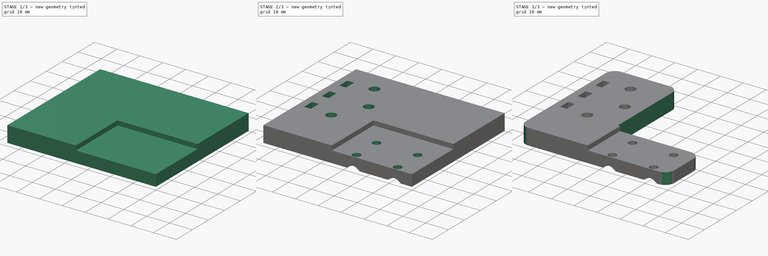
[diagram: build sequence overview — one tinted view per stage of 3, left to right]
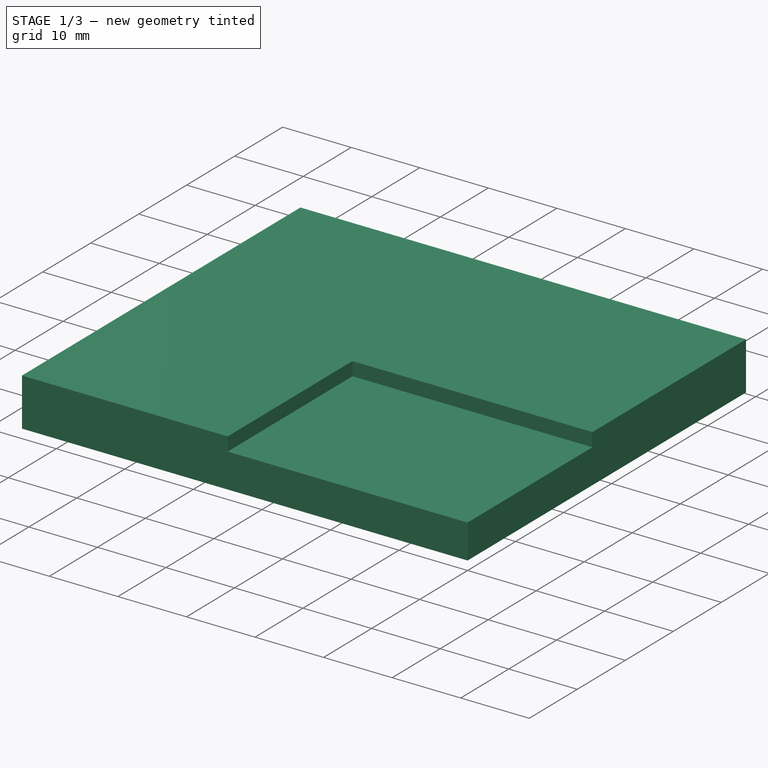
[diagram: stage 1 of 3 — iso view after this stage's code; geometry added in this stage tinted green]
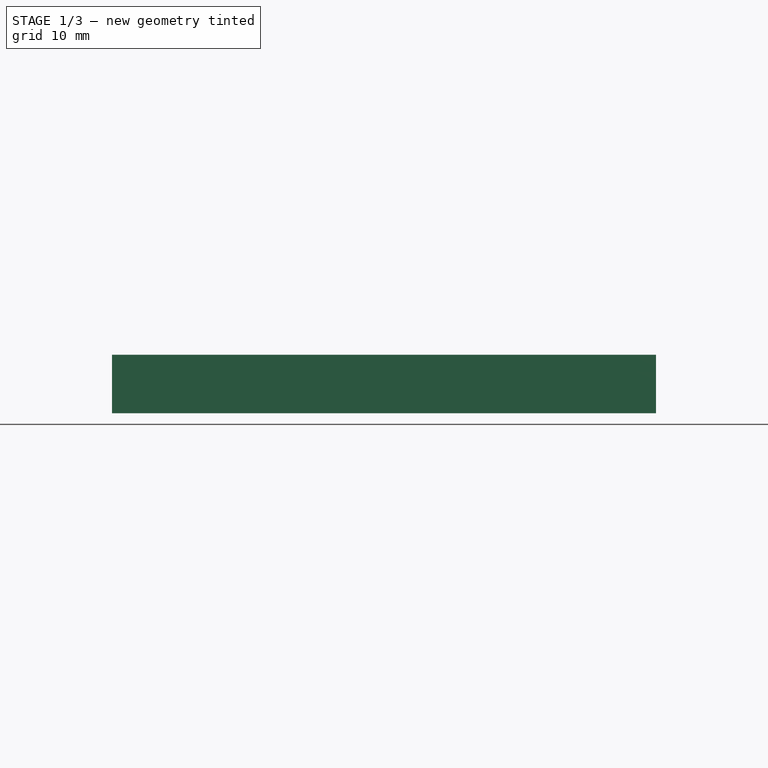
[diagram: stage 1 of 3 — front view after this stage's code; geometry added in this stage tinted green]
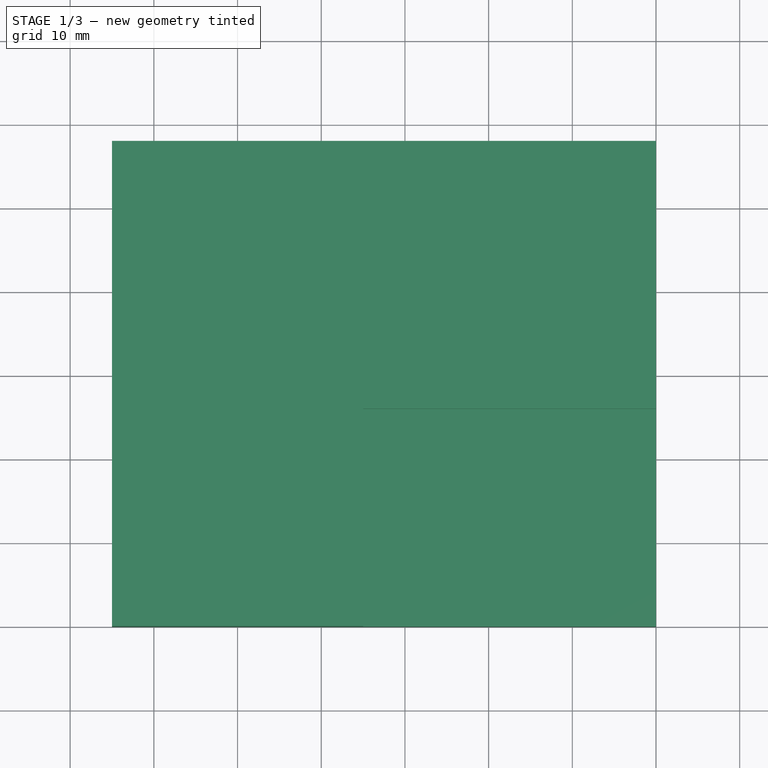
[diagram: stage 1 of 3 — top view after this stage's code; geometry added in this stage tinted green]
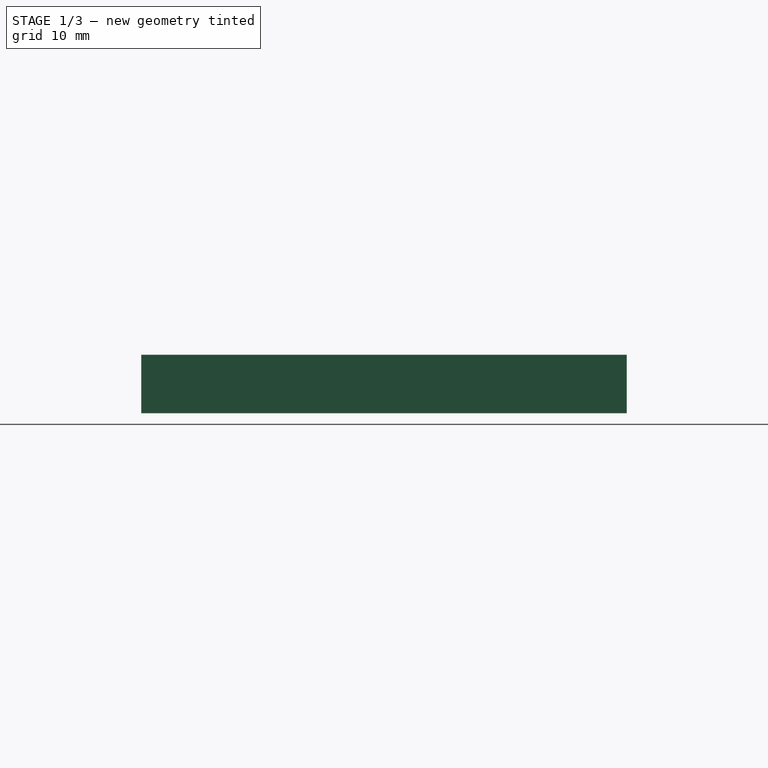
[diagram: stage 1 of 3 — right view after this stage's code; geometry added in this stage tinted green]
FCSTD DOCUMENT  (FreeCAD 0.20R29177 (Git))
Label: Chain
License: All rights reserved
LicenseURL: http://en.wikipedia.org/wiki/All_rights_reserved
objects: Sketcher::SketchObject×5, PartDesign::Pocket×4, PartDesign::Pad×1, PartDesign::Hole×1, PartDesign::Fillet×1, PartDesign::Body×1
note: 20 computed .brp shape members not serialized (recipe doc carries the construction recipe); baked Part::Feature solids carry a one-line shape summary decoded from their .brp

FEATURE [Sketcher::SketchObject] Sketch
  FullyConstrained = true
  MapMode = 5
  Support = -> [XY_Plane]
  sketch-geometry (4):
    g0: LineSegment StartX=0 StartY=0 StartZ=0 EndX=-65 EndY=0 EndZ=0
    g1: LineSegment StartX=-65 StartY=0 StartZ=0 EndX=-65 EndY=58 EndZ=0
    g2: LineSegment StartX=-65 StartY=58 StartZ=0 EndX=0 EndY=58 EndZ=0
    g3: LineSegment StartX=0 StartY=58 StartZ=0 EndX=0 EndY=0 EndZ=0
  constraints (11):
    c: Coincident(g0,g1)
    c: Coincident(g1,g2)
    c: Coincident(g2,g3)
    c: Coincident(g3,g0)
    c: Horizontal(g0)
    c: Horizontal(g2)
    c: Vertical(g1)
    c: Vertical(g3)
    c: Coincident(g0,g-1)
    c: DistanceY(g1,g1) = 58
    c: DistanceX(g0,g0) = 65
FEATURE [PartDesign::Pad] Pad
  Direction = (0,0,1)
  Length = 7
  Length2 = 10
  Profile = -> Sketch
  ReferenceAxis = -> Sketch [N_Axis]
  Type = 0
FEATURE [Sketcher::SketchObject] Sketch001
  FullyConstrained = true
  MapMode = 5
  Placement = pos=(0,0,7) rot=(0,0,1;0rad)
  Support = -> [Pad]
  sketch-geometry (4):
    g0: LineSegment StartX=0 StartY=0 StartZ=0 EndX=-35 EndY=0 EndZ=0
    g1: LineSegment StartX=-35 StartY=0 StartZ=0 EndX=-35 EndY=26 EndZ=0
    g2: LineSegment StartX=-35 StartY=26 StartZ=0 EndX=0 EndY=26 EndZ=0
    g3: LineSegment StartX=0 StartY=26 StartZ=0 EndX=0 EndY=0 EndZ=0
  constraints (11):
    c: Coincident(g0,g1)
    c: Coincident(g1,g2)
    c: Coincident(g2,g3)
    c: Coincident(g3,g0)
    c: Horizontal(g0)
    c: Horizontal(g2)
    c: Vertical(g1)
    c: Vertical(g3)
    c: Coincident(g0,g-1)
    c: DistanceY(g1,g1) = 26
    c: DistanceX(g0,g0) = 35
FEATURE [PartDesign::Pocket] Pocket
  BaseFeature = -> Pad
  Direction = (0,0,-1)
  Length = 2
  Length2 = 5
  Profile = -> Sketch001
  ReferenceAxis = -> Sketch001 [N_Axis]
  Type = 0
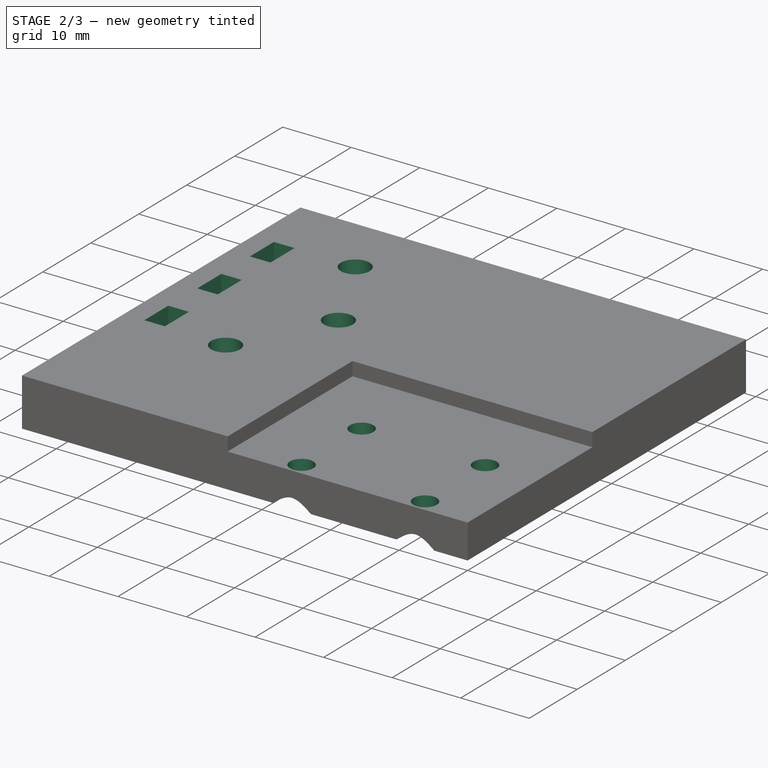
[diagram: stage 2 of 3 — iso view after this stage's code; geometry added in this stage tinted green]
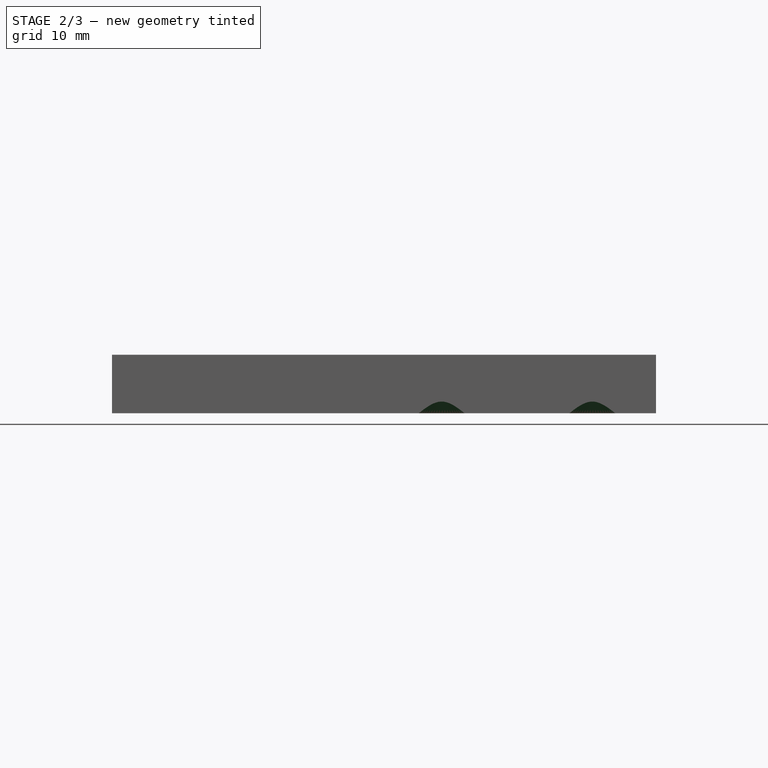
[diagram: stage 2 of 3 — front view after this stage's code; geometry added in this stage tinted green]
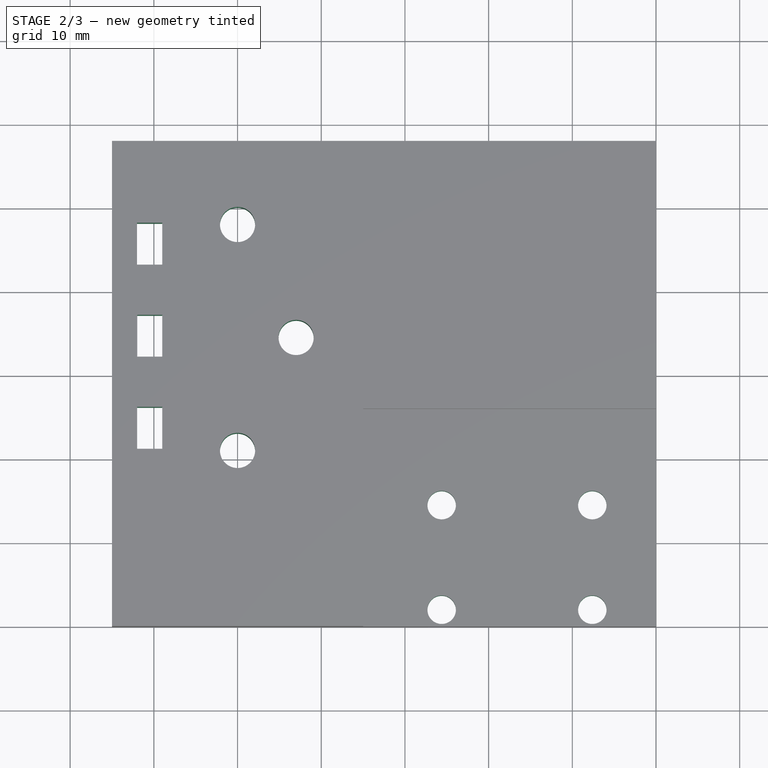
[diagram: stage 2 of 3 — top view after this stage's code; geometry added in this stage tinted green]
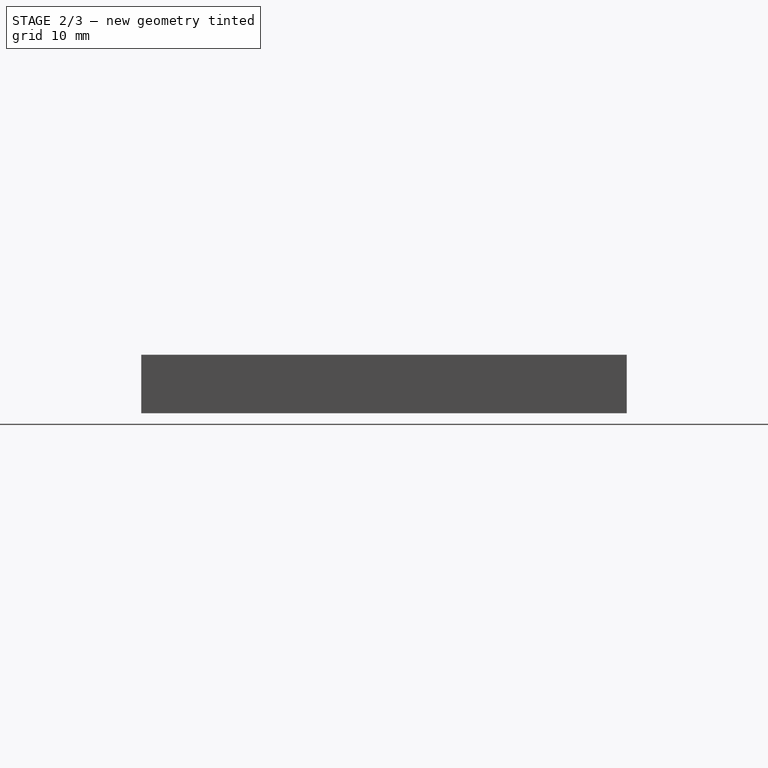
[diagram: stage 2 of 3 — right view after this stage's code; geometry added in this stage tinted green]
FEATURE [Sketcher::SketchObject] Sketch002
  FullyConstrained = true
  MapMode = 5
  Placement = pos=(0,0,7) rot=(0,0,1;0rad)
  Support = -> [Pocket]
  sketch-geometry (4):
    g0: Circle CenterX=-25.61 CenterY=2 CenterZ=0 NormalX=0 NormalY=0 NormalZ=1 AngleXU=0 Radius=1.6
    g1: Circle CenterX=-25.61 CenterY=14.5 CenterZ=0 NormalX=0 NormalY=0 NormalZ=1 AngleXU=0 Radius=1.6
    g2: Circle CenterX=-7.61 CenterY=14.5 CenterZ=0 NormalX=0 NormalY=0 NormalZ=1 AngleXU=0 Radius=1.6
    g3: Circle CenterX=-7.61 CenterY=2 CenterZ=0 NormalX=0 NormalY=0 NormalZ=1 AngleXU=0 Radius=1.6
  constraints (12):
    c: Distance(g0,g-1) = 2
    c: Distance(g3,g-1) = 2
    c: Distance(g3,g2) = 12.5
    c: Distance(g0,g1) = 12.5
    c: Distance(g3,g0) = 18
    c: Distance(g1,g2) = 18
    c: Diameter(g1) = 3.2
    c: Diameter(g2) = 3.2
    c: Diameter(g0) = 3.2
    c: Diameter(g3) = 3.2
    c: Distance(g3,g-2) = 7.61
    c: Distance(g2,g-2) = 7.61
FEATURE [PartDesign::Pocket] Pocket001
  BaseFeature = -> Pocket
  Direction = (0,0,-1)
  Length = 7
  Length2 = 5
  Profile = -> Sketch002
  ReferenceAxis = -> Sketch002 [N_Axis]
  Type = 0
FEATURE [PartDesign::Hole] Hole
  BaseFeature = -> Pocket001
  CustomThreadClearance = 0
  Depth = 25
  DepthType = 0
  Diameter = 3.4
  DrillForDepth = false
  DrillPoint = 1
  DrillPointAngle = 118
  HoleCutCountersinkAngle = 90
  HoleCutCustomValues = false
  HoleCutDepth = 0
  HoleCutDiameter = 6.8
  HoleCutType = 4
  ModelThread = false
  Profile = -> Pocket001 [Edge10,Edge12,Edge13,Edge11]
  Reversed = true
  Tapered = false
  TaperedAngle = 90
  ThreadClass = 0
  ThreadDepth = 25
  ThreadDepthType = 0
  ThreadDirection = 0
  ThreadFit = 0
  ThreadSize = 9
  ThreadType = 2
  Threaded = false
  UseCustomThreadClearance = false
FEATURE [Sketcher::SketchObject] Sketch003
  FullyConstrained = false
  MapMode = 5
  Placement = pos=(0,0,0) rot=(1,0,0;3.14159rad)
  Support = -> [Hole]
  sketch-geometry (19):
    g0: LineSegment StartX=-65 StartY=-14 StartZ=0 EndX=0 EndY=-14 EndZ=0
    g1: GeomPoint X=0 Y=-64 Z=0
    g2: LineSegment StartX=-50 StartY=0 StartZ=0 EndX=-50 EndY=-58 EndZ=0
    g3: GeomPoint X=-65 Y=0 Z=0
    g4: Circle CenterX=-50 CenterY=-21 CenterZ=0 NormalX=0 NormalY=0 NormalZ=1 AngleXU=0 Radius=2.1
    g5: Circle CenterX=-50 CenterY=-48 CenterZ=0 NormalX=0 NormalY=0 NormalZ=1 AngleXU=0 Radius=2.1
    g6: Circle CenterX=-43 CenterY=-34.5 CenterZ=0 NormalX=0 NormalY=0 NormalZ=1 AngleXU=0 Radius=2.1
    g7: LineSegment StartX=-62 StartY=-21.2036 StartZ=0 EndX=-59 EndY=-21.2036 EndZ=0
    g8: LineSegment StartX=-59 StartY=-21.2036 StartZ=0 EndX=-59 EndY=-26.2036 EndZ=0
    g9: LineSegment StartX=-59 StartY=-26.2036 StartZ=0 EndX=-62 EndY=-26.2036 EndZ=0
    g10: LineSegment StartX=-62 StartY=-26.2036 StartZ=0 EndX=-62 EndY=-21.2036 EndZ=0
    g11: LineSegment StartX=-61.9779 StartY=-32.2036 StartZ=0 EndX=-59 EndY=-32.2036 EndZ=0
    g12: LineSegment StartX=-59 StartY=-32.2036 StartZ=0 EndX=-59 EndY=-37.2036 EndZ=0
    g13: LineSegment StartX=-59 StartY=-37.2036 StartZ=0 EndX=-61.9779 EndY=-37.2036 EndZ=0
    g14: LineSegment StartX=-61.9779 StartY=-37.2036 StartZ=0 EndX=-61.9779 EndY=-32.2036 EndZ=0
    g15: LineSegment StartX=-62.0095 StartY=-43.2035 StartZ=0 EndX=-59 EndY=-43.2035 EndZ=0
    g16: LineSegment StartX=-59 StartY=-43.2035 StartZ=0 EndX=-59 EndY=-48.2035 EndZ=0
    g17: LineSegment StartX=-59 StartY=-48.2035 StartZ=0 EndX=-62.0095 EndY=-48.2035 EndZ=0
    g18: LineSegment StartX=-62.0095 StartY=-48.2035 StartZ=0 EndX=-62.0095 EndY=-43.2035 EndZ=0
  constraints (47):
    c: PointOnObject(g0,g-2)
    c: Horizontal(g0)
    c: PointOnObject(g1,g-2)
    c: PointOnObject(g2,g-1)
    c: Vertical(g2)
    c: PointOnObject(g3,g-1)
    c: Distance(g3,g2) = 15
    c: Block(g0)
    c: PointOnObject(g4,g2)
    c: PointOnObject(g5,g2)
    c: Distance(g4,g5) = 27
    c: Distance(g0,g-1) = 14
    c: Distance(g4,g0) = 7
    c: Distance(g6,g2) = 7
    c: Distance(g6,g0) = 20.5
    c: Diameter(g4) = 4.2
    c: Diameter(g6) = 4.2
    c: Diameter(g5) = 4.2
    c: Coincident(g7,g8)
    c: Coincident(g8,g9)
    c: Coincident(g9,g10)
    c: Coincident(g10,g7)
    c: Horizontal(g7)
    c: Horizontal(g9)
    c: Vertical(g8)
    c: Vertical(g10)
    c: Coincident(g11,g12)
    c: Coincident(g12,g13)
    c: Coincident(g13,g14)
    c: Coincident(g14,g11)
    c: Horizontal(g11)
    c: Horizontal(g13)
    c: Vertical(g12)
    c: Vertical(g14)
    c: Distance(g11,g9) = 6
    c: Coincident(g15,g16)
    c: Coincident(g16,g17)
    c: Coincident(g17,g18)
    c: Coincident(g18,g15)
    c: Horizontal(g15)
    c: Horizontal(g17)
    c: Vertical(g16)
    c: Vertical(g18)
    c: Distance(g13,g15) = 6
    c: Distance(g10) = 5
    c: Distance(g12) = 5
    c: Distance(g16) = 5
FEATURE [PartDesign::Pocket] Pocket002
  BaseFeature = -> Hole
  Direction = (0,0,1)
  Length = 10
  Length2 = 5
  Profile = -> Sketch003
  ReferenceAxis = -> Sketch003 [N_Axis]
  Type = 0
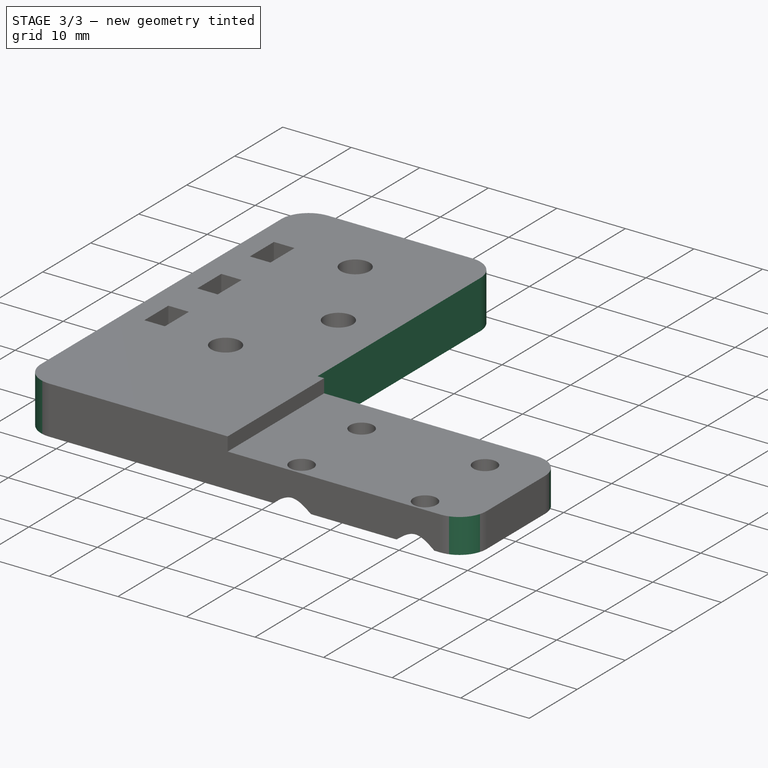
[diagram: stage 3 of 3 — iso view after this stage's code; geometry added in this stage tinted green]
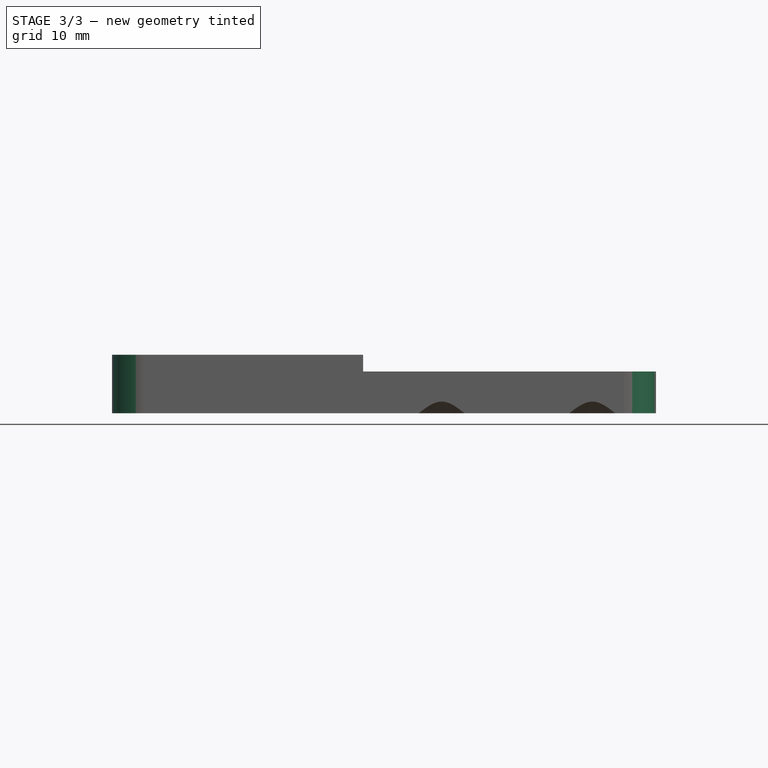
[diagram: stage 3 of 3 — front view after this stage's code; geometry added in this stage tinted green]
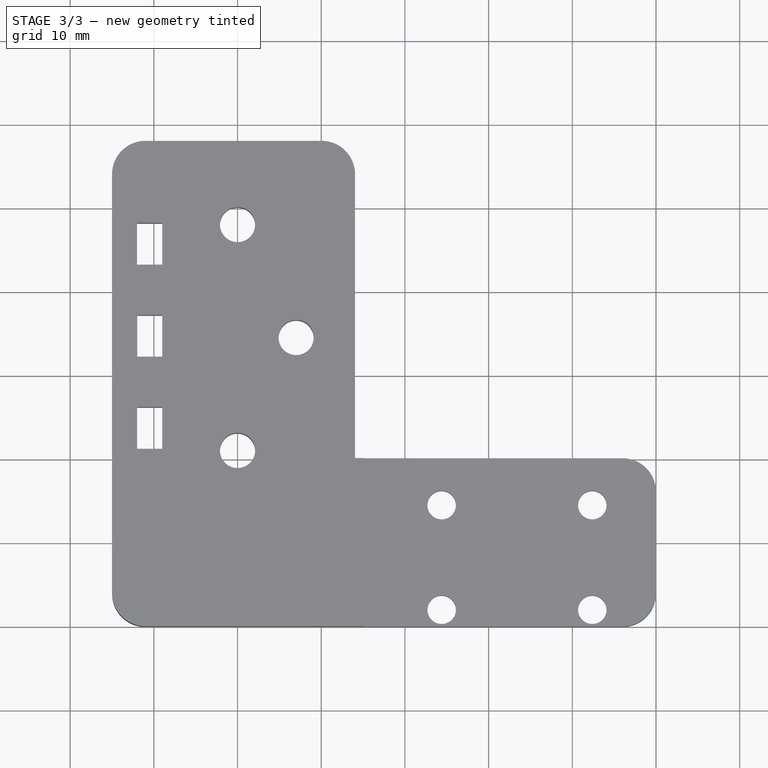
[diagram: stage 3 of 3 — top view after this stage's code; geometry added in this stage tinted green]
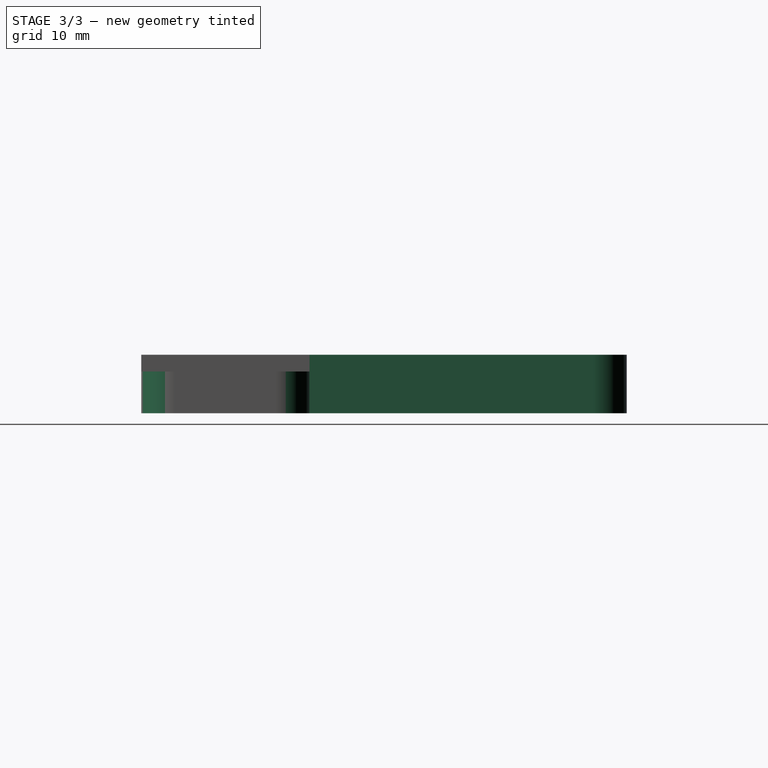
[diagram: stage 3 of 3 — right view after this stage's code; geometry added in this stage tinted green]
FEATURE [Sketcher::SketchObject] Sketch004
  FullyConstrained = false
  MapMode = 5
  Placement = pos=(0,0,0) rot=(1,0,0;3.14159rad)
  Support = -> [Pocket002]
  sketch-geometry (4):
    g0: LineSegment StartX=-35.9582 StartY=-20.1017 StartZ=0 EndX=0 EndY=-20.1017 EndZ=0
    g1: LineSegment StartX=0 StartY=-20.1017 StartZ=0 EndX=0 EndY=-58.9192 EndZ=0
    g2: LineSegment StartX=0 StartY=-58.9192 StartZ=0 EndX=-35.9582 EndY=-58.9192 EndZ=0
    g3: LineSegment StartX=-35.9582 StartY=-58.9192 StartZ=0 EndX=-35.9582 EndY=-20.1017 EndZ=0
  constraints (9):
    c: Coincident(g0,g1)
    c: Coincident(g1,g2)
    c: Coincident(g2,g3)
    c: Coincident(g3,g0)
    c: Horizontal(g0)
    c: Horizontal(g2)
    c: Vertical(g1)
    c: Vertical(g3)
    c: PointOnObject(g1,g-2)
FEATURE [PartDesign::Pocket] Pocket003
  BaseFeature = -> Pocket002
  Direction = (0,0,1)
  Length = 8
  Length2 = 5
  Profile = -> Sketch004
  ReferenceAxis = -> Sketch004 [N_Axis]
  Type = 0
FEATURE [PartDesign::Fillet] Fillet
  Base = -> Pocket003 [Edge6,Edge41,Edge71,Edge70,Edge10]
  BaseFeature = -> Pocket003
  Radius = 4
  SupportTransform = false
  UseAllEdges = false
FEATURE [PartDesign::Body] Body
  Group = -> [Sketch,Pad,Sketch001,Pocket,Sketch002,Pocket001,Hole,Sketch003,Pocket002,Sketch004,Pocket003,Fillet]
  Origin = -> Origin
  Tip = -> Fillet
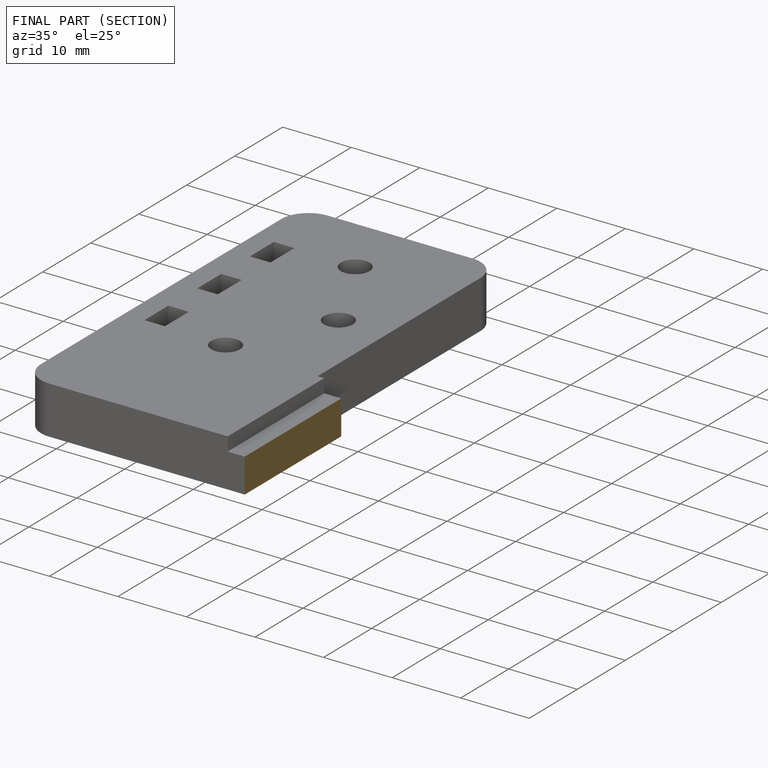
[diagram: finished part — half-section view (interior)]
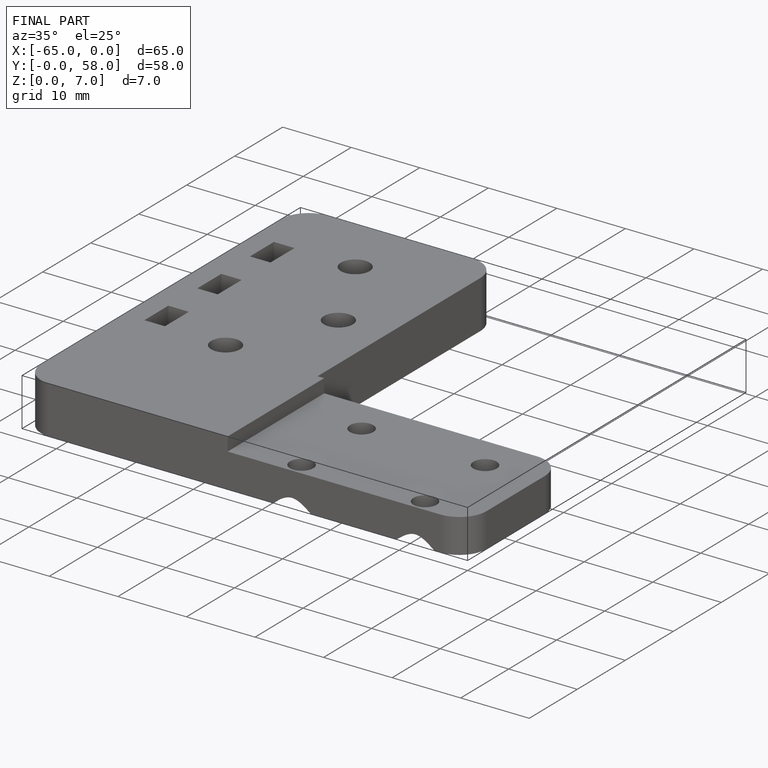
[diagram: finished part — iso view with bounding-box wireframe]
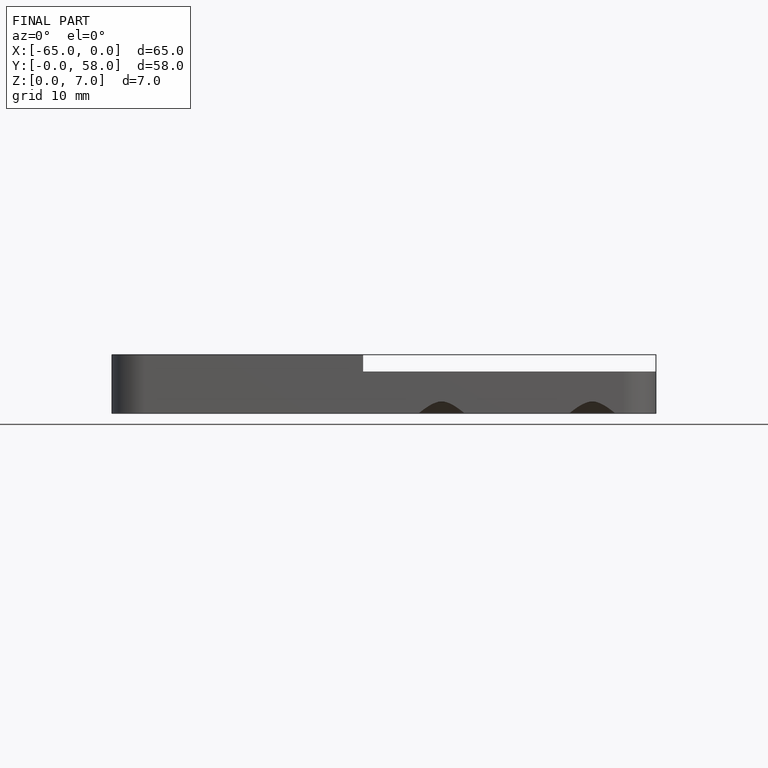
[diagram: finished part — front view with bounding-box wireframe]
